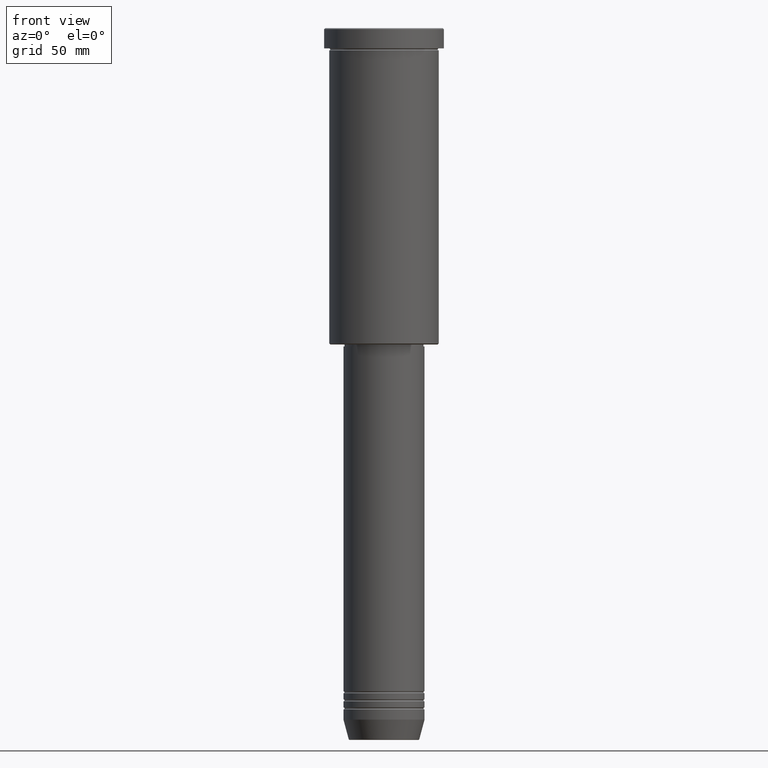
[diagram: clean part render]
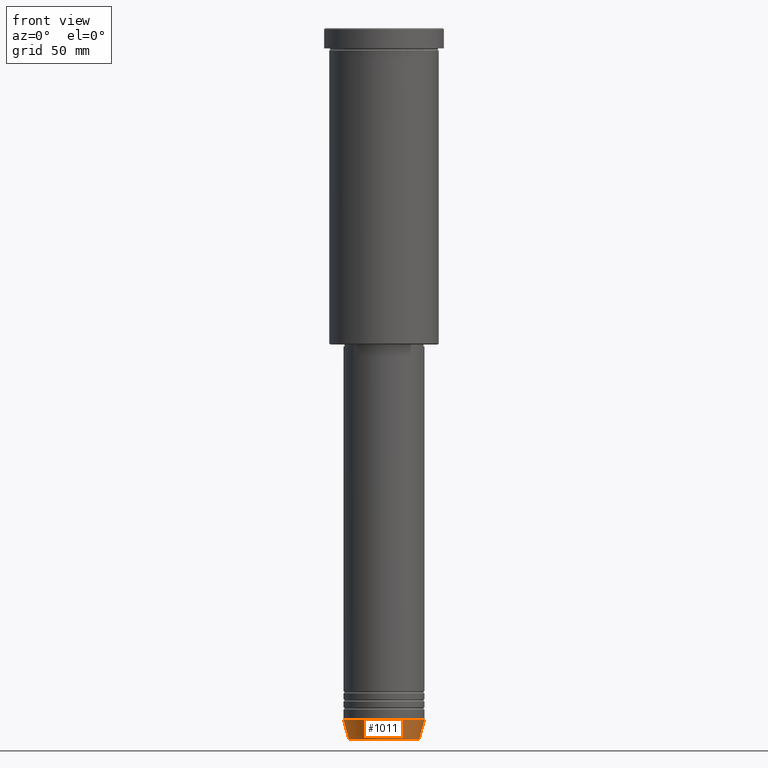
[diagram: same view with one face highlighted and labeled with its STEP entity id]
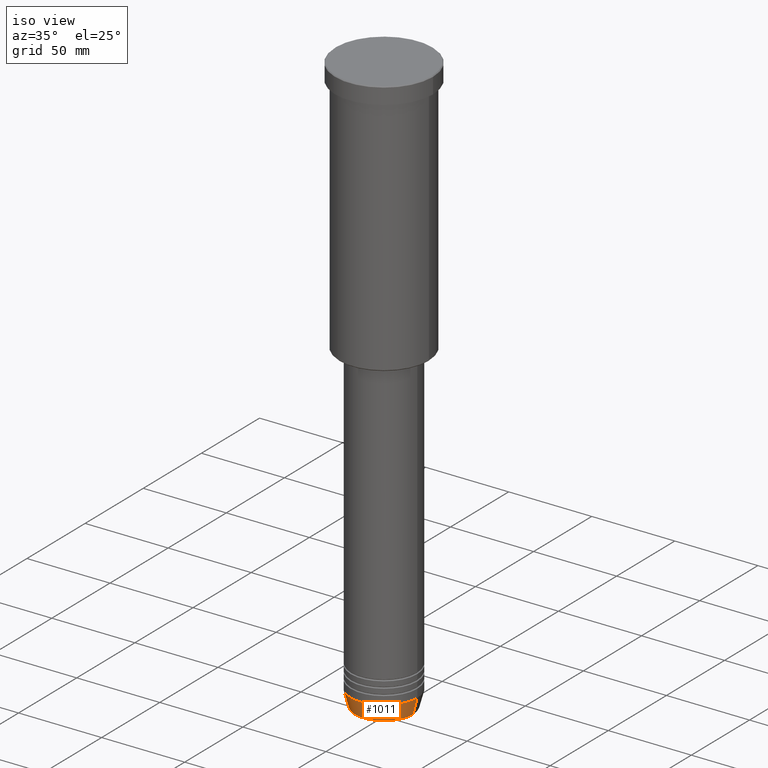
[diagram: same view with one face highlighted and labeled with its STEP entity id]
A machine part, front view. The second image highlights one B-rep face of the part: STEP entity #1011.
A second angle (iso view) of the same face is appended — the face is thin or edge-on in the first view.
In plain terms, the highlighted conical surface has half-angle 15 deg.
Its self-contained STEP definition (entity closure, byte-faithful):
#8 = LINE ( 'NONE', #758, #1012 ) ;
#180 = VECTOR ( 'NONE', #239, 1000.000000000000114 ) ;
#226 = CIRCLE ( 'NONE', #745, 20.00000000000000000 ) ;
#239 = DIRECTION ( 'NONE',  ( 0.2588190451025211836, 0.000000000000000000, 0.9659258262890680902 ) ) ;
#335 = LINE ( 'NONE', #891, #180 ) ;
#357 = ORIENTED_EDGE ( 'NONE', *, *, #448, .T. ) ;
#410 = VERTEX_POINT ( 'NONE', #431 ) ;
#431 = CARTESIAN_POINT ( 'NONE',  ( -20.00000000000000000, 2.449293598294706513E-15, -341.0000000000000000 ) ) ;
#446 = VERTEX_POINT ( 'NONE', #531 ) ;
#448 = EDGE_CURVE ( 'NONE', #446, #1044, #335, .T. ) ;
#495 = EDGE_CURVE ( 'NONE', #410, #1044, #226, .T. ) ;
#513 = ORIENTED_EDGE ( 'NONE', *, *, #630, .F. ) ;
#525 = CONICAL_SURFACE ( 'NONE', #656, 20.00000000000000000, 0.2617993877991499074 ) ;
#531 = CARTESIAN_POINT ( 'NONE',  ( 17.41980749484382684, 0.000000000000000000, -350.6294095225512706 ) ) ;
#560 = AXIS2_PLACEMENT_3D ( 'NONE', #780, #776, #1136 ) ;
#630 = EDGE_CURVE ( 'NONE', #856, #410, #8, .T. ) ;
#639 = CARTESIAN_POINT ( 'NONE',  ( 20.00000000000000000, 0.000000000000000000, -341.0000000000000000 ) ) ;
#656 = AXIS2_PLACEMENT_3D ( 'NONE', #1102, #842, #1115 ) ;
#658 = EDGE_CURVE ( 'NONE', #856, #446, #941, .T. ) ;
#703 = CARTESIAN_POINT ( 'NONE',  ( -17.41980749484382684, 2.291302373663531915E-15, -350.6294095225512706 ) ) ;
#722 = DIRECTION ( 'NONE',  ( 1.000000000000000000, 0.000000000000000000, 0.000000000000000000 ) ) ;
#738 = FACE_OUTER_BOUND ( 'NONE', #816, .T. ) ;
#744 = ORIENTED_EDGE ( 'NONE', *, *, #658, .T. ) ;
#745 = AXIS2_PLACEMENT_3D ( 'NONE', #814, #1173, #722 ) ;
#758 = CARTESIAN_POINT ( 'NONE',  ( -20.00000000000000000, 2.449293598294706513E-15, -341.0000000000000000 ) ) ;
#776 = DIRECTION ( 'NONE',  ( -0.000000000000000000, -0.000000000000000000, 1.000000000000000000 ) ) ;
#780 = CARTESIAN_POINT ( 'NONE',  ( 0.000000000000000000, 0.000000000000000000, -350.6294095225512706 ) ) ;
#814 = CARTESIAN_POINT ( 'NONE',  ( 0.000000000000000000, 0.000000000000000000, -341.0000000000000000 ) ) ;
#816 = EDGE_LOOP ( 'NONE', ( #513, #744, #357, #1116 ) ) ;
#842 = DIRECTION ( 'NONE',  ( -0.000000000000000000, -0.000000000000000000, 1.000000000000000000 ) ) ;
#856 = VERTEX_POINT ( 'NONE', #703 ) ;
#891 = CARTESIAN_POINT ( 'NONE',  ( 20.00000000000000000, 0.000000000000000000, -341.0000000000000000 ) ) ;
#941 = CIRCLE ( 'NONE', #560, 17.41980749484382684 ) ;
#953 = DIRECTION ( 'NONE',  ( -0.2588190451025211836, 3.169619151431770488E-17, 0.9659258262890680902 ) ) ;
#1011 = ADVANCED_FACE ( 'NONE', ( #738 ), #525, .T. ) ;
#1012 = VECTOR ( 'NONE', #953, 1000.000000000000114 ) ;
#1044 = VERTEX_POINT ( 'NONE', #639 ) ;
#1102 = CARTESIAN_POINT ( 'NONE',  ( 0.000000000000000000, 0.000000000000000000, -341.0000000000000000 ) ) ;
#1115 = DIRECTION ( 'NONE',  ( 1.000000000000000000, 0.000000000000000000, 0.000000000000000000 ) ) ;
#1116 = ORIENTED_EDGE ( 'NONE', *, *, #495, .F. ) ;
#1136 = DIRECTION ( 'NONE',  ( 1.000000000000000000, 0.000000000000000000, 0.000000000000000000 ) ) ;
#1173 = DIRECTION ( 'NONE',  ( -0.000000000000000000, -0.000000000000000000, 1.000000000000000000 ) ) ;